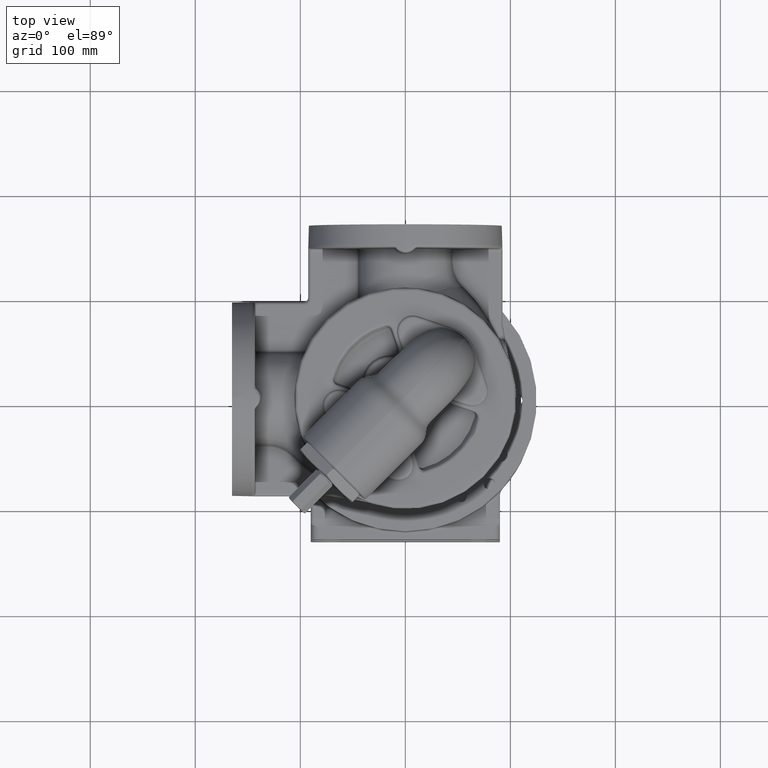
[diagram: clean part render]
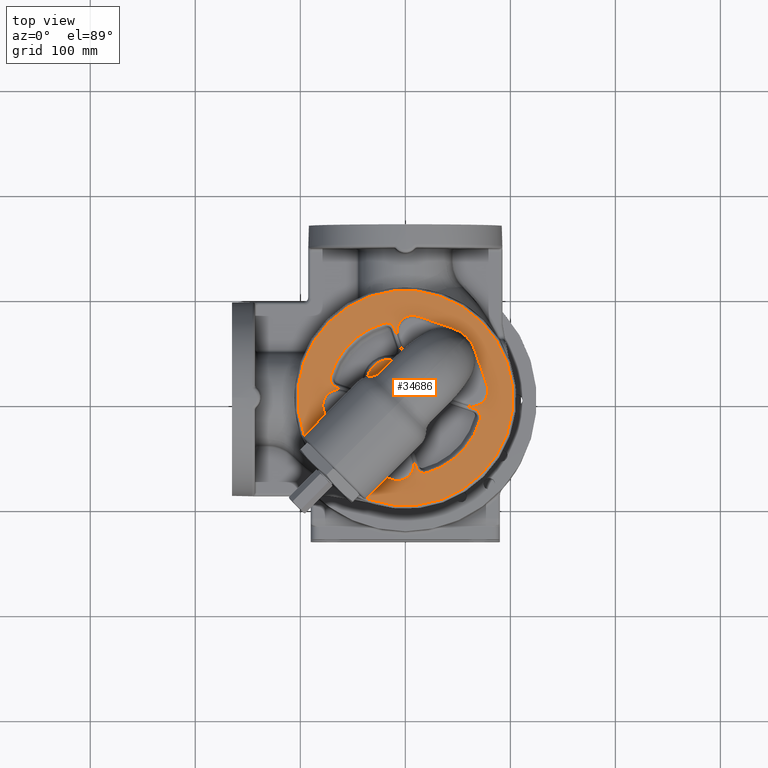
[diagram: same view with one face highlighted and labeled with its STEP entity id]
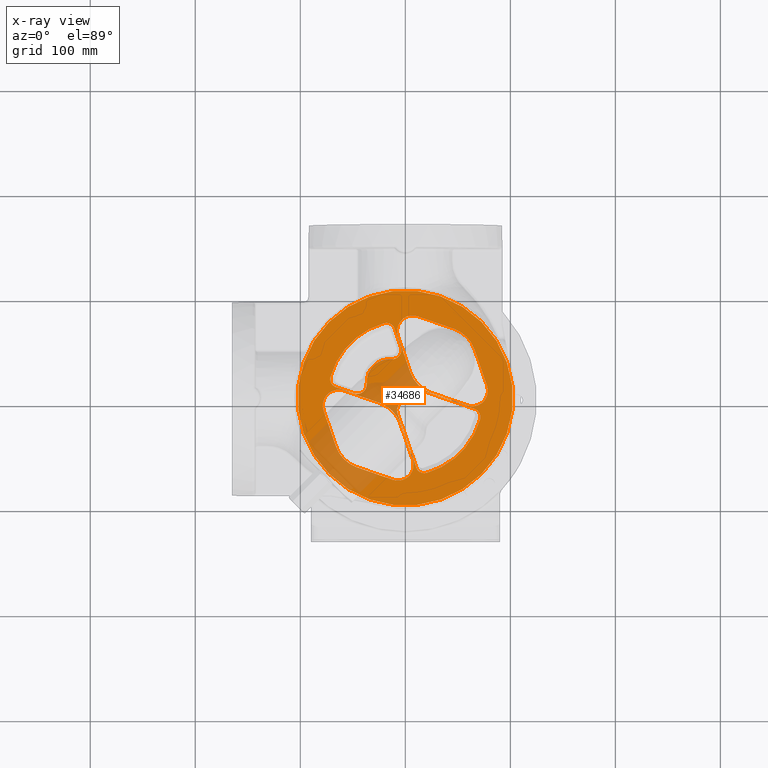
[diagram: x-ray of the same camera — body ghosted, the highlighted face saturated]
A machine part, top view. The second image highlights one B-rep face of the part: STEP entity #34686.
The next image is the same camera in x-ray: the body ghosted, the highlighted face saturated — about 17% of this face is hidden behind the body in this view.
In plain terms, the highlighted planar face has unit normal (0, 0, 1).
Its self-contained STEP definition (entity closure, byte-faithful):
#4009=CARTESIAN_POINT('',(-1.117082312544E-14,0.E0,1.39E2));
#4010=DIRECTION('',(0.E0,0.E0,-1.E0));
#4011=DIRECTION('',(-7.071067811865E-1,7.071067811865E-1,0.E0));
#4012=AXIS2_PLACEMENT_3D('',#4009,#4010,#4011);
#4014=CARTESIAN_POINT('',(-1.117082312544E-14,0.E0,1.39E2));
#4015=DIRECTION('',(0.E0,0.E0,-1.E0));
#4016=DIRECTION('',(7.071067811865E-1,-7.071067811865E-1,0.E0));
#4017=AXIS2_PLACEMENT_3D('',#4014,#4015,#4016);
#4019=CARTESIAN_POINT('',(-1.283744418972E1,4.578389397789E1,1.39E2));
#4020=DIRECTION('',(0.E0,0.E0,-1.E0));
#4021=DIRECTION('',(9.455185755993E-1,3.255681544572E-1,0.E0));
#4022=AXIS2_PLACEMENT_3D('',#4019,#4020,#4021);
#4024=DIRECTION('',(3.255681543832E-1,-9.455185756248E-1,5.905000719688E-13));
#4025=VECTOR('',#4024,1.862692668757E1);
#4026=CARTESIAN_POINT('',(-1.039211115503E1,6.632611256034E1,1.39E2));
#4027=LINE('',#4026,#4025);
#4028=CARTESIAN_POINT('',(-2.034201287284E1,7.131061665040E1,1.390000219774E2));
#4029=CARTESIAN_POINT('',(-2.023841728007E1,7.134017002421E1,1.390000206458E2));
#4030=CARTESIAN_POINT('',(-2.003002663508E1,7.139528600392E1,1.389999904182E2));
#4031=CARTESIAN_POINT('',(-1.971353003743E1,7.146608050997E1,1.390000025674E2));
#4032=CARTESIAN_POINT('',(-1.939406839018E1,7.152474813597E1,1.389999993121E2));
#4033=CARTESIAN_POINT('',(-1.907226099217E1,7.157116368123E1,1.390000001843E2));
#4034=CARTESIAN_POINT('',(-1.874882305452E1,7.160520076127E1,1.389999999506E2));
#4035=CARTESIAN_POINT('',(-1.842444912588E1,7.162676539234E1,1.390000000132E2));
#4036=CARTESIAN_POINT('',(-1.809984497100E1,7.163578827195E1,1.389999999965E2));
#4037=CARTESIAN_POINT('',(-1.777548341014E1,7.163231059580E1,1.390000000010E2));
#4038=CARTESIAN_POINT('',(-1.745183169204E1,7.161637711519E1,1.389999999997E2));
#4039=CARTESIAN_POINT('',(-1.712935510816E1,7.158803547560E1,1.390000000001E2));
#4040=CARTESIAN_POINT('',(-1.680859674467E1,7.154734882647E1,1.39E2));
#4041=CARTESIAN_POINT('',(-1.649009269131E1,7.149439643380E1,1.39E2));
#4042=CARTESIAN_POINT('',(-1.617437660423E1,7.142927488507E1,1.39E2));
#4043=CARTESIAN_POINT('',(-1.586209845935E1,7.135218567646E1,1.39E2));
#4044=CARTESIAN_POINT('',(-1.555389735253E1,7.126335556929E1,1.39E2));
#4045=CARTESIAN_POINT('',(-1.525037635702E1,7.116303220983E1,1.39E2));
#4046=CARTESIAN_POINT('',(-1.495195034620E1,7.105141918934E1,1.39E2));
#4047=CARTESIAN_POINT('',(-1.465903751567E1,7.092871445247E1,1.39E2));
#4048=CARTESIAN_POINT('',(-1.437204757540E1,7.079513435060E1,1.39E2));
#4049=CARTESIAN_POINT('',(-1.409140561218E1,7.065100095542E1,1.39E2));
#4050=CARTESIAN_POINT('',(-1.381752782386E1,7.049662462716E1,1.39E2));
#4051=CARTESIAN_POINT('',(-1.355079942122E1,7.033230406248E1,1.39E2));
#4052=CARTESIAN_POINT('',(-1.329156808919E1,7.015831802094E1,1.39E2));
#4053=CARTESIAN_POINT('',(-1.304018847138E1,6.997493131753E1,1.39E2));
#4054=CARTESIAN_POINT('',(-1.279694198800E1,6.978246548239E1,1.39E2));
#4055=CARTESIAN_POINT('',(-1.256208151508E1,6.958124330934E1,1.39E2));
#4056=CARTESIAN_POINT('',(-1.233589073502E1,6.937158217511E1,1.39E2));
#4057=CARTESIAN_POINT('',(-1.211872002940E1,6.915386461239E1,1.39E2));
#4058=CARTESIAN_POINT('',(-1.191091043360E1,6.892845718585E1,1.39E2));
#4059=CARTESIAN_POINT('',(-1.171272150593E1,6.869576450326E1,1.39E2));
#4060=CARTESIAN_POINT('',(-1.152439320582E1,6.845621360173E1,1.39E2));
#4061=CARTESIAN_POINT('',(-1.134611885303E1,6.821016053065E1,1.39E2));
#4062=CARTESIAN_POINT('',(-1.117794033020E1,6.795772436557E1,1.389999999999E2));
#4063=CARTESIAN_POINT('',(-1.101995010698E1,6.769895910486E1,1.390000000003E2));
#4064=CARTESIAN_POINT('',(-1.087234156433E1,6.743426094642E1,1.389999999990E2));
#4065=CARTESIAN_POINT('',(-1.073534074937E1,6.716417232167E1,1.390000000038E2));
#4066=CARTESIAN_POINT('',(-1.060917217011E1,6.688921292354E1,1.389999999857E2));
#4067=CARTESIAN_POINT('',(-1.049403828551E1,6.660984102782E1,1.390000000532E2));
#4068=CARTESIAN_POINT('',(-1.042483297745E1,6.642112816424E1,1.389999998853E2));
#4069=CARTESIAN_POINT('',(-1.039211115503E1,6.632611256034E1,1.39E2));
#4071=CARTESIAN_POINT('',(-1.117082312544E-14,0.E0,1.39E2));
#4072=DIRECTION('',(0.E0,0.E0,-1.E0));
#4073=DIRECTION('',(-9.608361223149E-1,2.771172063493E-1,0.E0));
#4074=AXIS2_PLACEMENT_3D('',#4071,#4072,#4073);
#4076=CARTESIAN_POINT('',(-6.600077054329E1,1.028008691493E1,1.39E2));
#4077=CARTESIAN_POINT('',(-6.610041373074E1,1.031440328973E1,1.389999996091E2));
#4078=CARTESIAN_POINT('',(-6.629838420222E1,1.038699358934E1,1.390000001814E2));
#4079=CARTESIAN_POINT('',(-6.659164517100E1,1.050780864788E1,1.389999999514E2));
#4080=CARTESIAN_POINT('',(-6.688048859419E1,1.064027739050E1,1.390000000130E2));
#4081=CARTESIAN_POINT('',(-6.716444630727E1,1.078421162428E1,1.389999999965E2));
#4082=CARTESIAN_POINT('',(-6.744298587566E1,1.093939965209E1,1.390000000009E2));
#4083=CARTESIAN_POINT('',(-6.771554959735E1,1.110563197634E1,1.389999999997E2));
#4084=CARTESIAN_POINT('',(-6.798173337581E1,1.128271622727E1,1.390000000001E2));
#4085=CARTESIAN_POINT('',(-6.824134340047E1,1.147049574868E1,1.39E2));
#4086=CARTESIAN_POINT('',(-6.849414173635E1,1.166885035950E1,1.39E2));
#4087=CARTESIAN_POINT('',(-6.873972384711E1,1.187754933756E1,1.39E2));
#4088=CARTESIAN_POINT('',(-6.897761841475E1,1.209630263397E1,1.39E2));
#4089=CARTESIAN_POINT('',(-6.920736834267E1,1.232482099593E1,1.39E2));
#4090=CARTESIAN_POINT('',(-6.942859251523E1,1.256274993374E1,1.39E2));
#4091=CARTESIAN_POINT('',(-6.964091127997E1,1.280972870601E1,1.39E2));
#4092=CARTESIAN_POINT('',(-6.984393430929E1,1.306537623201E1,1.39E2));
#4093=CARTESIAN_POINT('',(-7.003725801793E1,1.332927616906E1,1.39E2));
#4094=CARTESIAN_POINT('',(-7.022046817172E1,1.360099927829E1,1.39E2));
#4095=CARTESIAN_POINT('',(-7.039324870788E1,1.388013117123E1,1.39E2));
#4096=CARTESIAN_POINT('',(-7.055534551339E1,1.416626663490E1,1.39E2));
#4097=CARTESIAN_POINT('',(-7.070649055999E1,1.445899723510E1,1.39E2));
#4098=CARTESIAN_POINT('',(-7.084637919773E1,1.475782166230E1,1.39E2));
#4099=CARTESIAN_POINT('',(-7.097470980674E1,1.506221682110E1,1.39E2));
#4100=CARTESIAN_POINT('',(-7.109121407289E1,1.537165556192E1,1.39E2));
#4101=CARTESIAN_POINT('',(-7.119571062064E1,1.568561234161E1,1.39E2));
#4102=CARTESIAN_POINT('',(-7.128802132753E1,1.600356334910E1,1.39E2));
#4103=CARTESIAN_POINT('',(-7.136796893827E1,1.632493604231E1,1.39E2));
#4104=CARTESIAN_POINT('',(-7.143538640793E1,1.664910981779E1,1.39E2));
#4105=CARTESIAN_POINT('',(-7.149012631145E1,1.697547192453E1,1.39E2));
#4106=CARTESIAN_POINT('',(-7.153211546746E1,1.730337305650E1,1.39E2));
#4107=CARTESIAN_POINT('',(-7.156131750268E1,1.763216037629E1,1.39E2));
#4108=CARTESIAN_POINT('',(-7.157772416460E1,1.796117614132E1,1.39E2));
#4109=CARTESIAN_POINT('',(-7.158135531456E1,1.829009021275E1,1.390000000001E2));
#4110=CARTESIAN_POINT('',(-7.157220315663E1,1.861859534753E1,1.389999999995E2));
#4111=CARTESIAN_POINT('',(-7.155024762939E1,1.894635681958E1,1.390000000017E2));
#4112=CARTESIAN_POINT('',(-7.151561401751E1,1.927268431409E1,1.389999999936E2));
#4113=CARTESIAN_POINT('',(-7.146843141244E1,1.959692134434E1,1.390000000237E2));
#4114=CARTESIAN_POINT('',(-7.140884897152E1,1.991838991018E1,1.389999999115E2));
#4115=CARTESIAN_POINT('',(-7.133700208703E1,2.023650540930E1,1.390000003303E2));
#4116=CARTESIAN_POINT('',(-7.128108758790E1,2.044575117973E1,1.389999992884E2));
#4117=CARTESIAN_POINT('',(-7.125111053731E1,2.054971523527E1,1.390000000077E2));
#4119=DIRECTION('',(-9.455185756361E-1,3.255681543504E-1,-2.331835110989E-14));
#4120=VECTOR('',#4119,1.828283824388E1);
#4121=CARTESIAN_POINT('',(-4.871400736836E1,4.327777011586E0,1.39E2));
#4122=LINE('',#4121,#4120);
#4123=CARTESIAN_POINT('',(-4.578389397789E1,1.283744418972E1,1.39E2));
#4124=DIRECTION('',(0.E0,0.E0,-1.E0));
#4125=DIRECTION('',(9.978919862250E-1,6.489671661943E-2,0.E0));
#4126=AXIS2_PLACEMENT_3D('',#4123,#4124,#4125);
#4128=CARTESIAN_POINT('',(-1.484924240492E1,1.484924240492E1,1.39E2));
#4129=DIRECTION('',(0.E0,0.E0,1.E0));
#4130=DIRECTION('',(6.489671661941E-2,9.978919862250E-1,0.E0));
#4131=AXIS2_PLACEMENT_3D('',#4128,#4129,#4130);
#4133=CARTESIAN_POINT('',(1.172549902783E1,-1.112684727562E0,1.39E2));
#4134=DIRECTION('',(0.E0,0.E0,-1.E0));
#4135=DIRECTION('',(-8.572497236370E-1,5.149008752413E-1,0.E0));
#4136=AXIS2_PLACEMENT_3D('',#4133,#4134,#4135);
#4138=CARTESIAN_POINT('',(-1.484924240492E1,1.484924240492E1,1.39E2));
#4139=DIRECTION('',(0.E0,0.E0,1.E0));
#4140=DIRECTION('',(5.149008752413E-1,-8.572497236370E-1,0.E0));
#4141=AXIS2_PLACEMENT_3D('',#4138,#4139,#4140);
#4143=CARTESIAN_POINT('',(1.112684727562E0,-1.172549902783E1,1.39E2));
#4144=DIRECTION('',(0.E0,0.E0,-1.E0));
#4145=DIRECTION('',(-9.455185755993E-1,-3.255681544572E-1,0.E0));
#4146=AXIS2_PLACEMENT_3D('',#4143,#4144,#4145);
#4148=DIRECTION('',(-3.255681544462E-1,9.455185756031E-1,1.563133065247E-14));
#4149=VECTOR('',#4148,5.454758151236E1);
#4150=CARTESIAN_POINT('',(1.036197299091E1,-6.623136399339E1,1.39E2));
#4151=LINE('',#4150,#4149);
#4152=CARTESIAN_POINT('',(2.040651089985E1,-7.129198287671E1,1.390000026003E2));
#4153=CARTESIAN_POINT('',(2.030258034061E1,-7.132173473487E1,1.390000010862E2));
#4154=CARTESIAN_POINT('',(2.009351272609E1,-7.137721460250E1,1.389999994959E2));
#4155=CARTESIAN_POINT('',(1.977599676429E1,-7.144846600553E1,1.390000001351E2));
#4156=CARTESIAN_POINT('',(1.945547413229E1,-7.150751891957E1,1.389999999638E2));
#4157=CARTESIAN_POINT('',(1.913253861021E1,-7.155425669254E1,1.390000000097E2));
#4158=CARTESIAN_POINT('',(1.880787706355E1,-7.158855558206E1,1.389999999974E2));
#4159=CARTESIAN_POINT('',(1.848214965437E1,-7.161032191382E1,1.390000000007E2));
#4160=CARTESIAN_POINT('',(1.815605336313E1,-7.161946658576E1,1.389999999998E2));
#4161=CARTESIAN_POINT('',(1.783015372706E1,-7.161598538055E1,1.39E2));
#4162=CARTESIAN_POINT('',(1.750487569109E1,-7.159994541484E1,1.39E2));
#4163=CARTESIAN_POINT('',(1.718066357480E1,-7.157139658908E1,1.39E2));
#4164=CARTESIAN_POINT('',(1.685798137541E1,-7.153039348712E1,1.39E2));
#4165=CARTESIAN_POINT('',(1.653739288670E1,-7.147701066805E1,1.39E2));
#4166=CARTESIAN_POINT('',(1.621944291770E1,-7.141133852913E1,1.39E2));
#4167=CARTESIAN_POINT('',(1.590467340641E1,-7.133348252986E1,1.39E2));
#4168=CARTESIAN_POINT('',(1.559372501287E1,-7.124366760328E1,1.39E2));
#4169=CARTESIAN_POINT('',(1.528721915642E1,-7.114214032927E1,1.39E2));
#4170=CARTESIAN_POINT('',(1.498578586552E1,-7.102918245606E1,1.39E2));
#4171=CARTESIAN_POINT('',(1.468983398815E1,-7.090501262060E1,1.39E2));
#4172=CARTESIAN_POINT('',(1.439972421521E1,-7.076982702084E1,1.39E2));
#4173=CARTESIAN_POINT('',(1.411581429765E1,-7.062379293163E1,1.39E2));
#4174=CARTESIAN_POINT('',(1.383850479877E1,-7.046718748629E1,1.39E2));
#4175=CARTESIAN_POINT('',(1.356822342E1,-7.030037152064E1,1.39E2));
#4176=CARTESIAN_POINT('',(1.330538447273E1,-7.012368870140E1,1.39E2));
#4177=CARTESIAN_POINT('',(1.305037445060E1,-6.993747429568E1,1.39E2));
#4178=CARTESIAN_POINT('',(1.280353309172E1,-6.974203032645E1,1.39E2));
#4179=CARTESIAN_POINT('',(1.256520207648E1,-6.953765337374E1,1.39E2));
#4180=CARTESIAN_POINT('',(1.233571312084E1,-6.932464402525E1,1.39E2));
#4181=CARTESIAN_POINT('',(1.211536598870E1,-6.910344088885E1,1.39E2));
#4182=CARTESIAN_POINT('',(1.190445124105E1,-6.887446322567E1,1.39E2));
#4183=CARTESIAN_POINT('',(1.170326264913E1,-6.863814500493E1,1.39E2));
#4184=CARTESIAN_POINT('',(1.151197796033E1,-6.839477566816E1,1.389999999999E2));
#4185=CARTESIAN_POINT('',(1.133076449691E1,-6.814460333325E1,1.390000000002E2));
#4186=CARTESIAN_POINT('',(1.115981672668E1,-6.788783010356E1,1.389999999991E2));
#4187=CARTESIAN_POINT('',(1.099932089060E1,-6.762479632402E1,1.390000000033E2));
#4188=CARTESIAN_POINT('',(1.084945029546E1,-6.735599247367E1,1.389999999877E2));
#4189=CARTESIAN_POINT('',(1.071038954829E1,-6.708186069587E1,1.390000000459E2));
#4190=CARTESIAN_POINT('',(1.058233497523E1,-6.680286112628E1,1.389999998287E2));
#4191=CARTESIAN_POINT('',(1.046547070251E1,-6.651938507319E1,1.390000006393E2));
#4192=CARTESIAN_POINT('',(1.039519957132E1,-6.632782618801E1,1.389999986224E2));
#4193=CARTESIAN_POINT('',(1.036197299091E1,-6.623136399339E1,1.39E2));
#4195=CARTESIAN_POINT('',(-1.117082312544E-14,0.E0,1.39E2));
#4196=DIRECTION('',(0.E0,0.E0,-1.E0));
#4197=DIRECTION('',(9.602819408728E-1,-2.790315287445E-1,0.E0));
#4198=AXIS2_PLACEMENT_3D('',#4195,#4196,#4197);
#4200=CARTESIAN_POINT('',(6.577494656286E1,-1.020481586626E1,1.39E2));
#4201=CARTESIAN_POINT('',(6.587583951699E1,-1.023956474781E1,1.389999993231E2));
#4202=CARTESIAN_POINT('',(6.607637322577E1,-1.031297160889E1,1.390000003142E2));
#4203=CARTESIAN_POINT('',(6.637366929684E1,-1.043487864107E1,1.389999999158E2));
#4204=CARTESIAN_POINT('',(6.666672685535E1,-1.056830943885E1,1.390000000226E2));
#4205=CARTESIAN_POINT('',(6.695507532210E1,-1.071307313036E1,1.389999999940E2));
#4206=CARTESIAN_POINT('',(6.723816982781E1,-1.086894769402E1,1.390000000016E2));
#4207=CARTESIAN_POINT('',(6.751549075005E1,-1.103571206196E1,1.389999999996E2));
#4208=CARTESIAN_POINT('',(6.778648015745E1,-1.121313541013E1,1.390000000001E2));
#4209=CARTESIAN_POINT('',(6.805082231201E1,-1.140100186230E1,1.39E2));
#4210=CARTESIAN_POINT('',(6.830824460363E1,-1.159910421951E1,1.39E2));
#4211=CARTESIAN_POINT('',(6.855846494733E1,-1.180725852751E1,1.39E2));
#4212=CARTESIAN_POINT('',(6.880108516003E1,-1.202519566828E1,1.39E2));
#4213=CARTESIAN_POINT('',(6.903566150440E1,-1.225259031998E1,1.39E2));
#4214=CARTESIAN_POINT('',(6.926175718620E1,-1.248912325209E1,1.39E2));
#4215=CARTESIAN_POINT('',(6.947898168538E1,-1.273442082717E1,1.39E2));
#4216=CARTESIAN_POINT('',(6.968698319080E1,-1.298807004957E1,1.39E2));
#4217=CARTESIAN_POINT('',(6.988540987474E1,-1.324965567067E1,1.39E2));
#4218=CARTESIAN_POINT('',(7.007391370554E1,-1.351874597260E1,1.39E2));
#4219=CARTESIAN_POINT('',(7.025215504537E1,-1.379489714704E1,1.39E2));
#4220=CARTESIAN_POINT('',(7.041978863638E1,-1.407765397686E1,1.39E2));
#4221=CARTESIAN_POINT('',(7.057654939211E1,-1.436657485568E1,1.39E2));
#4222=CARTESIAN_POINT('',(7.072225243093E1,-1.466123585590E1,1.39E2));
#4223=CARTESIAN_POINT('',(7.085670152906E1,-1.496122059490E1,1.39E2));
#4224=CARTESIAN_POINT('',(7.097967584380E1,-1.526604441536E1,1.39E2));
#4225=CARTESIAN_POINT('',(7.109095341659E1,-1.557518320817E1,1.39E2));
#4226=CARTESIAN_POINT('',(7.119032049531E1,-1.588811132734E1,1.39E2));
#4227=CARTESIAN_POINT('',(7.127767050870E1,-1.620435751529E1,1.39E2));
#4228=CARTESIAN_POINT('',(7.135291833222E1,-1.652347991084E1,1.39E2));
#4229=CARTESIAN_POINT('',(7.141595896902E1,-1.684497935785E1,1.39E2));
#4230=CARTESIAN_POINT('',(7.146667722070E1,-1.716821519603E1,1.39E2));
#4231=CARTESIAN_POINT('',(7.150498144818E1,-1.749256027602E1,1.39E2));
#4232=CARTESIAN_POINT('',(7.153085992762E1,-1.781743637858E1,1.39E2));
#4233=CARTESIAN_POINT('',(7.154433483737E1,-1.814225892232E1,1.389999999999E2));
#4234=CARTESIAN_POINT('',(7.154544584917E1,-1.846654773158E1,1.390000000003E2));
#4235=CARTESIAN_POINT('',(7.153422795957E1,-1.879012746636E1,1.389999999988E2));
#4236=CARTESIAN_POINT('',(7.151065310035E1,-1.911284104040E1,1.390000000046E2));
#4237=CARTESIAN_POINT('',(7.147480966308E1,-1.943414983605E1,1.389999999827E2));
#4238=CARTESIAN_POINT('',(7.142684245847E1,-1.975338851703E1,1.390000000645E2));
#4239=CARTESIAN_POINT('',(7.136689925711E1,-2.006991138756E1,1.389999997591E2));
#4240=CARTESIAN_POINT('',(7.129511597268E1,-2.038315198620E1,1.390000008989E2));
#4241=CARTESIAN_POINT('',(7.123952261823E1,-2.058921513495E1,1.389999980632E2));
#4242=CARTESIAN_POINT('',(7.120977638330E1,-2.069160308383E1,1.389999982521E2));
#4244=DIRECTION('',(9.455185756060E-1,-3.255681544379E-1,0.E0));
#4245=VECTOR('',#4244,5.406486500004E1);
#4246=CARTESIAN_POINT('',(1.465561241769E1,7.396982451740E0,1.39E2));
#4247=LINE('',#4246,#4245);
#4248=DIRECTION('',(-3.264842191489E-1,9.452026526871E-1,0.E0));
#4249=VECTOR('',#4248,3.596873642485E1);
#4250=CARTESIAN_POINT('',(7.106971978441E0,-5.874234701956E1,1.39E2));
#4251=LINE('',#4250,#4249);
#4252=CARTESIAN_POINT('',(-3.535533905933E1,-3.535533905933E1,1.39E2));
#4253=DIRECTION('',(0.E0,0.E0,1.E0));
#4254=DIRECTION('',(9.452026526871E-1,3.264842191489E-1,0.E0));
#4255=AXIS2_PLACEMENT_3D('',#4252,#4253,#4254);
#4257=DIRECTION('',(-9.452026526871E-1,3.264842191489E-1,0.E0));
#4258=VECTOR('',#4257,3.596873642485E1);
#4259=CARTESIAN_POINT('',(-2.474460193699E1,-4.636252846996E0,1.39E2));
#4260=LINE('',#4259,#4258);
#4261=CARTESIAN_POINT('',(-6.363961030679E1,-7.071067811865E0,1.39E2));
#4262=DIRECTION('',(0.E0,0.E0,1.E0));
#4263=DIRECTION('',(3.264842191489E-1,9.452026526871E-1,0.E0));
#4264=AXIS2_PLACEMENT_3D('',#4261,#4262,#4263);
#4266=DIRECTION('',(3.264842191489E-1,-9.452026526871E-1,0.E0));
#4267=VECTOR('',#4266,3.596873642485E1);
#4268=CARTESIAN_POINT('',(-7.781765009710E1,-1.196833109910E1,1.39E2));
#4269=LINE('',#4268,#4267);
#4270=CARTESIAN_POINT('',(-3.535533905933E1,-3.535533905933E1,1.39E2));
#4271=DIRECTION('',(0.E0,0.E0,1.E0));
#4272=DIRECTION('',(-9.452026526871E-1,-3.264842191489E-1,0.E0));
#4273=AXIS2_PLACEMENT_3D('',#4270,#4271,#4272);
#4275=DIRECTION('',(9.452026526871E-1,-3.264842191489E-1,0.E0));
#4276=VECTOR('',#4275,3.596873642485E1);
#4277=CARTESIAN_POINT('',(-4.596607618167E1,-6.607442527166E1,1.39E2));
#4278=LINE('',#4277,#4276);
#4279=CARTESIAN_POINT('',(-7.071067811865E0,-6.363961030679E1,1.39E2));
#4280=DIRECTION('',(0.E0,0.E0,1.E0));
#4281=DIRECTION('',(-3.264842191489E-1,-9.452026526871E-1,0.E0));
#4282=AXIS2_PLACEMENT_3D('',#4279,#4280,#4281);
#4284=DIRECTION('',(-3.264842191489E-1,9.452026526871E-1,0.E0));
#4285=VECTOR('',#4284,3.596873642485E1);
#4286=CARTESIAN_POINT('',(7.781765009710E1,1.196833109910E1,1.39E2));
#4287=LINE('',#4286,#4285);
#4288=CARTESIAN_POINT('',(3.535533905933E1,3.535533905933E1,1.39E2));
#4289=DIRECTION('',(0.E0,0.E0,1.E0));
#4290=DIRECTION('',(9.452026526871E-1,3.264842191489E-1,0.E0));
#4291=AXIS2_PLACEMENT_3D('',#4288,#4289,#4290);
#4293=DIRECTION('',(-9.452026526871E-1,3.264842191489E-1,0.E0));
#4294=VECTOR('',#4293,3.596873642485E1);
#4295=CARTESIAN_POINT('',(4.596607618167E1,6.607442527166E1,1.39E2));
#4296=LINE('',#4295,#4294);
#4297=CARTESIAN_POINT('',(7.071067811865E0,6.363961030679E1,1.39E2));
#4298=DIRECTION('',(0.E0,0.E0,1.E0));
#4299=DIRECTION('',(3.264842191489E-1,9.452026526871E-1,0.E0));
#4300=AXIS2_PLACEMENT_3D('',#4297,#4298,#4299);
#4302=DIRECTION('',(3.264842191489E-1,-9.452026526871E-1,0.E0));
#4303=VECTOR('',#4302,3.596873642485E1);
#4304=CARTESIAN_POINT('',(-7.106971978441E0,5.874234701956E1,1.39E2));
#4305=LINE('',#4304,#4303);
#4306=CARTESIAN_POINT('',(3.535533905933E1,3.535533905933E1,1.39E2));
#4307=DIRECTION('',(0.E0,0.E0,1.E0));
#4308=DIRECTION('',(-9.452026526871E-1,-3.264842191489E-1,0.E0));
#4309=AXIS2_PLACEMENT_3D('',#4306,#4307,#4308);
#4311=DIRECTION('',(9.452026526871E-1,-3.264842191489E-1,0.E0));
#4312=VECTOR('',#4311,3.596873642485E1);
#4313=CARTESIAN_POINT('',(2.474460193699E1,4.636252846996E0,1.39E2));
#4314=LINE('',#4313,#4312);
#4315=CARTESIAN_POINT('',(6.363961030679E1,7.071067811865E0,1.39E2));
#4316=DIRECTION('',(0.E0,0.E0,1.E0));
#4317=DIRECTION('',(-3.264842191489E-1,-9.452026526871E-1,0.E0));
#4318=AXIS2_PLACEMENT_3D('',#4315,#4316,#4317);
#22228=CARTESIAN_POINT('',(-7.247844507162E1,7.247844507162E1,1.39E2));
#22229=CARTESIAN_POINT('',(7.247844507162E1,-7.247844507162E1,1.39E2));
#22230=VERTEX_POINT('',#22228);
#22231=VERTEX_POINT('',#22229);
#22251=CARTESIAN_POINT('',(-4.327777009322E0,4.871400736801E1,1.39E2));
#22252=CARTESIAN_POINT('',(-1.342151463929E1,3.680286610187E1,1.39E2));
#22253=VERTEX_POINT('',#22251);
#22254=VERTEX_POINT('',#22252);
#22259=CARTESIAN_POINT('',(-3.680286610187E1,1.342151463929E1,1.39E2));
#22260=VERTEX_POINT('',#22259);
#22263=CARTESIAN_POINT('',(-4.871400736801E1,4.327777009322E0,1.39E2));
#22264=VERTEX_POINT('',#22263);
#22267=CARTESIAN_POINT('',(-6.600077054329E1,1.028008691493E1,1.39E2));
#22268=VERTEX_POINT('',#22267);
#22271=VERTEX_POINT('',#4117);
#22273=CARTESIAN_POINT('',(-2.034203140577E1,7.131068160966E1,1.39E2));
#22274=VERTEX_POINT('',#22273);
#22276=VERTEX_POINT('',#4069);
#22278=CARTESIAN_POINT('',(4.010251515097E0,3.521423149609E0,1.39E2));
#22279=CARTESIAN_POINT('',(1.465561241794E1,7.396982452832E0,1.39E2));
#22280=VERTEX_POINT('',#22278);
#22281=VERTEX_POINT('',#22279);
#22286=CARTESIAN_POINT('',(6.577494656286E1,-1.020481586626E1,1.39E2));
#22287=VERTEX_POINT('',#22286);
#22290=VERTEX_POINT('',#4242);
#22292=CARTESIAN_POINT('',(2.040651343691E1,-7.129199173992E1,1.39E2));
#22293=VERTEX_POINT('',#22292);
#22295=VERTEX_POINT('',#4193);
#22297=CARTESIAN_POINT('',(-7.396982451571E0,-1.465561241923E1,1.39E2));
#22298=VERTEX_POINT('',#22297);
#22301=CARTESIAN_POINT('',(-3.521423149609E0,-4.010251515097E0,1.39E2));
#22302=VERTEX_POINT('',#22301);
#22557=CARTESIAN_POINT('',(7.106971978441E0,-5.874234701956E1,1.39E2));
#22558=CARTESIAN_POINT('',(-4.636252846996E0,-2.474460193699E1,1.39E2));
#22559=VERTEX_POINT('',#22557);
#22560=VERTEX_POINT('',#22558);
#22561=CARTESIAN_POINT('',(-2.474460193699E1,-4.636252846996E0,1.39E2));
#22562=VERTEX_POINT('',#22561);
#22563=CARTESIAN_POINT('',(-5.874234701956E1,7.106971978441E0,1.39E2));
#22564=VERTEX_POINT('',#22563);
#22565=CARTESIAN_POINT('',(-7.781765009710E1,-1.196833109910E1,1.39E2));
#22566=VERTEX_POINT('',#22565);
#22567=CARTESIAN_POINT('',(-6.607442527166E1,-4.596607618167E1,1.39E2));
#22568=VERTEX_POINT('',#22567);
#22569=CARTESIAN_POINT('',(-4.596607618167E1,-6.607442527166E1,1.39E2));
#22570=VERTEX_POINT('',#22569);
#22571=CARTESIAN_POINT('',(-1.196833109910E1,-7.781765009710E1,1.39E2));
#22572=VERTEX_POINT('',#22571);
#22573=CARTESIAN_POINT('',(7.781765009710E1,1.196833109910E1,1.39E2));
#22574=CARTESIAN_POINT('',(6.607442527166E1,4.596607618167E1,1.39E2));
#22575=VERTEX_POINT('',#22573);
#22576=VERTEX_POINT('',#22574);
#22577=CARTESIAN_POINT('',(4.596607618167E1,6.607442527166E1,1.39E2));
#22578=VERTEX_POINT('',#22577);
#22579=CARTESIAN_POINT('',(1.196833109910E1,7.781765009710E1,1.39E2));
#22580=VERTEX_POINT('',#22579);
#22581=CARTESIAN_POINT('',(-7.106971978441E0,5.874234701956E1,1.39E2));
#22582=VERTEX_POINT('',#22581);
#22583=CARTESIAN_POINT('',(4.636252846996E0,2.474460193699E1,1.39E2));
#22584=VERTEX_POINT('',#22583);
#22585=CARTESIAN_POINT('',(2.474460193699E1,4.636252846996E0,1.39E2));
#22586=VERTEX_POINT('',#22585);
#22587=CARTESIAN_POINT('',(5.874234701956E1,-7.106971978441E0,1.39E2));
#22588=VERTEX_POINT('',#22587);
#34605=CARTESIAN_POINT('',(-1.117082312544E-14,0.E0,1.39E2));
#34606=DIRECTION('',(0.E0,0.E0,1.E0));
#34607=DIRECTION('',(7.071067811865E-1,-7.071067811865E-1,0.E0));
#34608=AXIS2_PLACEMENT_3D('',#34605,#34606,#34607);
#34609=PLANE('',#34608);
#34610=ORIENTED_EDGE('',*,*,#34599,.T.);
#34611=ORIENTED_EDGE('',*,*,#34585,.T.);
#34612=EDGE_LOOP('',(#34610,#34611));
#34613=FACE_OUTER_BOUND('',#34612,.F.);
#34615=ORIENTED_EDGE('',*,*,#34614,.F.);
#34617=ORIENTED_EDGE('',*,*,#34616,.F.);
#34619=ORIENTED_EDGE('',*,*,#34618,.F.);
#34621=ORIENTED_EDGE('',*,*,#34620,.F.);
#34623=ORIENTED_EDGE('',*,*,#34622,.F.);
#34625=ORIENTED_EDGE('',*,*,#34624,.F.);
#34627=ORIENTED_EDGE('',*,*,#34626,.F.);
#34629=ORIENTED_EDGE('',*,*,#34628,.F.);
#34630=EDGE_LOOP('',(#34615,#34617,#34619,#34621,#34623,#34625,#34627,#34629));
#34631=FACE_BOUND('',#34630,.F.);
#34633=ORIENTED_EDGE('',*,*,#34632,.F.);
#34635=ORIENTED_EDGE('',*,*,#34634,.F.);
#34637=ORIENTED_EDGE('',*,*,#34636,.F.);
#34639=ORIENTED_EDGE('',*,*,#34638,.F.);
#34641=ORIENTED_EDGE('',*,*,#34640,.F.);
#34643=ORIENTED_EDGE('',*,*,#34642,.F.);
#34645=ORIENTED_EDGE('',*,*,#34644,.F.);
#34647=ORIENTED_EDGE('',*,*,#34646,.F.);
#34648=EDGE_LOOP('',(#34633,#34635,#34637,#34639,#34641,#34643,#34645,#34647));
#34649=FACE_BOUND('',#34648,.F.);
#34651=ORIENTED_EDGE('',*,*,#34650,.T.);
#34653=ORIENTED_EDGE('',*,*,#34652,.T.);
#34655=ORIENTED_EDGE('',*,*,#34654,.T.);
#34657=ORIENTED_EDGE('',*,*,#34656,.T.);
#34659=ORIENTED_EDGE('',*,*,#34658,.T.);
#34661=ORIENTED_EDGE('',*,*,#34660,.T.);
#34663=ORIENTED_EDGE('',*,*,#34662,.T.);
#34665=ORIENTED_EDGE('',*,*,#34664,.T.);
#34666=EDGE_LOOP('',(#34651,#34653,#34655,#34657,#34659,#34661,#34663,#34665));
#34667=FACE_BOUND('',#34666,.F.);
#34669=ORIENTED_EDGE('',*,*,#34668,.T.);
#34671=ORIENTED_EDGE('',*,*,#34670,.T.);
#34673=ORIENTED_EDGE('',*,*,#34672,.T.);
#34675=ORIENTED_EDGE('',*,*,#34674,.T.);
#34677=ORIENTED_EDGE('',*,*,#34676,.T.);
#34679=ORIENTED_EDGE('',*,*,#34678,.T.);
#34681=ORIENTED_EDGE('',*,*,#34680,.T.);
#34683=ORIENTED_EDGE('',*,*,#34682,.T.);
#34684=EDGE_LOOP('',(#34669,#34671,#34673,#34675,#34677,#34679,#34681,#34683));
#34685=FACE_BOUND('',#34684,.F.);
#34686=ADVANCED_FACE('',(#34613,#34631,#34649,#34667,#34685),#34609,.T.);
#4013=CIRCLE('',#4012,1.025E2);
#4018=CIRCLE('',#4017,1.025E2);
#4023=CIRCLE('',#4022,9.E0);
#4070=B_SPLINE_CURVE_WITH_KNOTS('',3,(#4028,#4029,#4030,#4031,#4032,#4033,#4034,
#4035,#4036,#4037,#4038,#4039,#4040,#4041,#4042,#4043,#4044,#4045,#4046,#4047,
#4048,#4049,#4050,#4051,#4052,#4053,#4054,#4055,#4056,#4057,#4058,#4059,#4060,
#4061,#4062,#4063,#4064,#4065,#4066,#4067,#4068,#4069),.UNSPECIFIED.,.F.,.F.,(4,
1,1,1,1,1,1,1,1,1,1,1,1,1,1,1,1,1,1,1,1,1,1,1,1,1,1,1,1,1,1,1,1,1,1,1,1,1,1,4),(
0.E0,2.564102564103E-2,5.128205128205E-2,7.692307692308E-2,1.025641025641E-1,
1.282051282051E-1,1.538461538462E-1,1.794871794872E-1,2.051282051282E-1,
2.307692307692E-1,2.564102564103E-1,2.820512820513E-1,3.076923076923E-1,
3.333333333333E-1,3.589743589744E-1,3.846153846154E-1,4.102564102564E-1,
4.358974358974E-1,4.615384615385E-1,4.871794871795E-1,5.128205128205E-1,
5.384615384615E-1,5.641025641026E-1,5.897435897436E-1,6.153846153846E-1,
6.410256410256E-1,6.666666666667E-1,6.923076923077E-1,7.179487179487E-1,
7.435897435897E-1,7.692307692308E-1,7.948717948718E-1,8.205128205128E-1,
8.461538461538E-1,8.717948717949E-1,8.974358974359E-1,9.230769230769E-1,
9.487179487179E-1,9.743589743590E-1,1.E0),.UNSPECIFIED.);
#4075=CIRCLE('',#4074,7.415532046554E1);
#4118=B_SPLINE_CURVE_WITH_KNOTS('',3,(#4076,#4077,#4078,#4079,#4080,#4081,#4082,
#4083,#4084,#4085,#4086,#4087,#4088,#4089,#4090,#4091,#4092,#4093,#4094,#4095,
#4096,#4097,#4098,#4099,#4100,#4101,#4102,#4103,#4104,#4105,#4106,#4107,#4108,
#4109,#4110,#4111,#4112,#4113,#4114,#4115,#4116,#4117),.UNSPECIFIED.,.F.,.F.,(4,
1,1,1,1,1,1,1,1,1,1,1,1,1,1,1,1,1,1,1,1,1,1,1,1,1,1,1,1,1,1,1,1,1,1,1,1,1,1,4),(
0.E0,2.564102564103E-2,5.128205128205E-2,7.692307692308E-2,1.025641025641E-1,
1.282051282051E-1,1.538461538462E-1,1.794871794872E-1,2.051282051282E-1,
2.307692307692E-1,2.564102564103E-1,2.820512820513E-1,3.076923076923E-1,
3.333333333333E-1,3.589743589744E-1,3.846153846154E-1,4.102564102564E-1,
4.358974358974E-1,4.615384615385E-1,4.871794871795E-1,5.128205128205E-1,
5.384615384615E-1,5.641025641026E-1,5.897435897436E-1,6.153846153846E-1,
6.410256410256E-1,6.666666666667E-1,6.923076923077E-1,7.179487179487E-1,
7.435897435897E-1,7.692307692308E-1,7.948717948718E-1,8.205128205128E-1,
8.461538461538E-1,8.717948717949E-1,8.974358974359E-1,9.230769230769E-1,
9.487179487179E-1,9.743589743590E-1,1.E0),.UNSPECIFIED.);
#4127=CIRCLE('',#4126,9.E0);
#4132=CIRCLE('',#4131,2.2E1);
#4137=CIRCLE('',#4136,9.E0);
#4142=CIRCLE('',#4141,2.2E1);
#4147=CIRCLE('',#4146,9.E0);
#4194=B_SPLINE_CURVE_WITH_KNOTS('',3,(#4152,#4153,#4154,#4155,#4156,#4157,#4158,
#4159,#4160,#4161,#4162,#4163,#4164,#4165,#4166,#4167,#4168,#4169,#4170,#4171,
#4172,#4173,#4174,#4175,#4176,#4177,#4178,#4179,#4180,#4181,#4182,#4183,#4184,
#4185,#4186,#4187,#4188,#4189,#4190,#4191,#4192,#4193),.UNSPECIFIED.,.F.,.F.,(4,
1,1,1,1,1,1,1,1,1,1,1,1,1,1,1,1,1,1,1,1,1,1,1,1,1,1,1,1,1,1,1,1,1,1,1,1,1,1,4),(
0.E0,2.564102564103E-2,5.128205128205E-2,7.692307692308E-2,1.025641025641E-1,
1.282051282051E-1,1.538461538462E-1,1.794871794872E-1,2.051282051282E-1,
2.307692307692E-1,2.564102564103E-1,2.820512820513E-1,3.076923076923E-1,
3.333333333333E-1,3.589743589744E-1,3.846153846154E-1,4.102564102564E-1,
4.358974358974E-1,4.615384615385E-1,4.871794871795E-1,5.128205128205E-1,
5.384615384615E-1,5.641025641026E-1,5.897435897436E-1,6.153846153846E-1,
6.410256410256E-1,6.666666666667E-1,6.923076923077E-1,7.179487179487E-1,
7.435897435897E-1,7.692307692308E-1,7.948717948718E-1,8.205128205128E-1,
8.461538461538E-1,8.717948717949E-1,8.974358974359E-1,9.230769230769E-1,
9.487179487179E-1,9.743589743590E-1,1.E0),.UNSPECIFIED.);
#4199=CIRCLE('',#4198,7.415506642770E1);
#4243=B_SPLINE_CURVE_WITH_KNOTS('',3,(#4200,#4201,#4202,#4203,#4204,#4205,#4206,
#4207,#4208,#4209,#4210,#4211,#4212,#4213,#4214,#4215,#4216,#4217,#4218,#4219,
#4220,#4221,#4222,#4223,#4224,#4225,#4226,#4227,#4228,#4229,#4230,#4231,#4232,
#4233,#4234,#4235,#4236,#4237,#4238,#4239,#4240,#4241,#4242),.UNSPECIFIED.,.F.,
.F.,(4,1,1,1,1,1,1,1,1,1,1,1,1,1,1,1,1,1,1,1,1,1,1,1,1,1,1,1,1,1,1,1,1,1,1,1,1,
1,1,1,4),(0.E0,2.5E-2,5.E-2,7.5E-2,1.E-1,1.25E-1,1.5E-1,1.75E-1,2.E-1,2.25E-1,
2.5E-1,2.75E-1,3.E-1,3.25E-1,3.5E-1,3.75E-1,4.E-1,4.25E-1,4.5E-1,4.75E-1,5.E-1,
5.25E-1,5.5E-1,5.75E-1,6.E-1,6.25E-1,6.5E-1,6.75E-1,7.E-1,7.25E-1,7.5E-1,
7.75E-1,8.E-1,8.25E-1,8.5E-1,8.75E-1,9.E-1,9.25E-1,9.5E-1,9.75E-1,1.E0),
.UNSPECIFIED.);
#4256=CIRCLE('',#4255,3.25E1);
#4265=CIRCLE('',#4264,1.5E1);
#4274=CIRCLE('',#4273,3.25E1);
#4283=CIRCLE('',#4282,1.5E1);
#4292=CIRCLE('',#4291,3.25E1);
#4301=CIRCLE('',#4300,1.5E1);
#4310=CIRCLE('',#4309,3.25E1);
#4319=CIRCLE('',#4318,1.5E1);
#34585=EDGE_CURVE('',#22231,#22230,#4018,.T.);
#34599=EDGE_CURVE('',#22230,#22231,#4013,.T.);
#34614=EDGE_CURVE('',#22253,#22254,#4023,.T.);
#34616=EDGE_CURVE('',#22276,#22253,#4027,.T.);
#34618=EDGE_CURVE('',#22274,#22276,#4070,.T.);
#34620=EDGE_CURVE('',#22271,#22274,#4075,.T.);
#34622=EDGE_CURVE('',#22268,#22271,#4118,.T.);
#34624=EDGE_CURVE('',#22264,#22268,#4122,.T.);
#34626=EDGE_CURVE('',#22260,#22264,#4127,.T.);
#34628=EDGE_CURVE('',#22254,#22260,#4132,.T.);
#34632=EDGE_CURVE('',#22280,#22281,#4137,.T.);
#34634=EDGE_CURVE('',#22302,#22280,#4142,.T.);
#34636=EDGE_CURVE('',#22298,#22302,#4147,.T.);
#34638=EDGE_CURVE('',#22295,#22298,#4151,.T.);
#34640=EDGE_CURVE('',#22293,#22295,#4194,.T.);
#34642=EDGE_CURVE('',#22290,#22293,#4199,.T.);
#34644=EDGE_CURVE('',#22287,#22290,#4243,.T.);
#34646=EDGE_CURVE('',#22281,#22287,#4247,.T.);
#34650=EDGE_CURVE('',#22559,#22560,#4251,.T.);
#34652=EDGE_CURVE('',#22560,#22562,#4256,.T.);
#34654=EDGE_CURVE('',#22562,#22564,#4260,.T.);
#34656=EDGE_CURVE('',#22564,#22566,#4265,.T.);
#34658=EDGE_CURVE('',#22566,#22568,#4269,.T.);
#34660=EDGE_CURVE('',#22568,#22570,#4274,.T.);
#34662=EDGE_CURVE('',#22570,#22572,#4278,.T.);
#34664=EDGE_CURVE('',#22572,#22559,#4283,.T.);
#34668=EDGE_CURVE('',#22575,#22576,#4287,.T.);
#34670=EDGE_CURVE('',#22576,#22578,#4292,.T.);
#34672=EDGE_CURVE('',#22578,#22580,#4296,.T.);
#34674=EDGE_CURVE('',#22580,#22582,#4301,.T.);
#34676=EDGE_CURVE('',#22582,#22584,#4305,.T.);
#34678=EDGE_CURVE('',#22584,#22586,#4310,.T.);
#34680=EDGE_CURVE('',#22586,#22588,#4314,.T.);
#34682=EDGE_CURVE('',#22588,#22575,#4319,.T.);